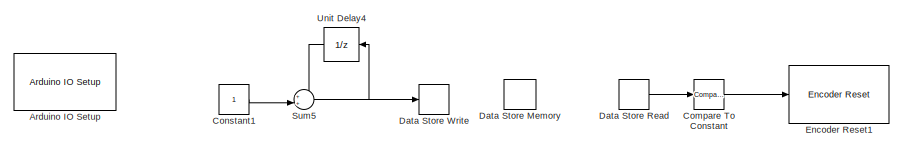
[diagram: root canvas - part 1/2, full width, top band]
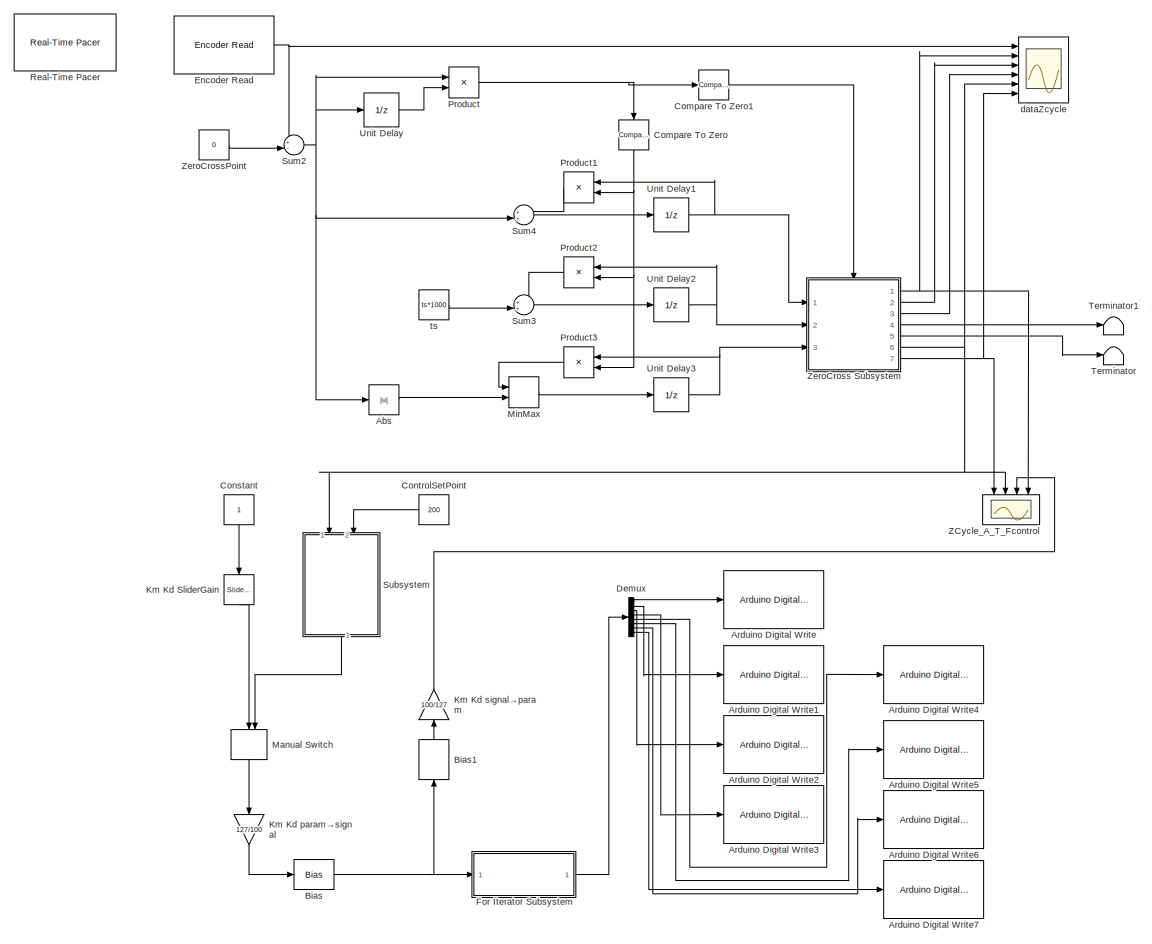
[diagram: root canvas - part 2/2, most of the canvas]
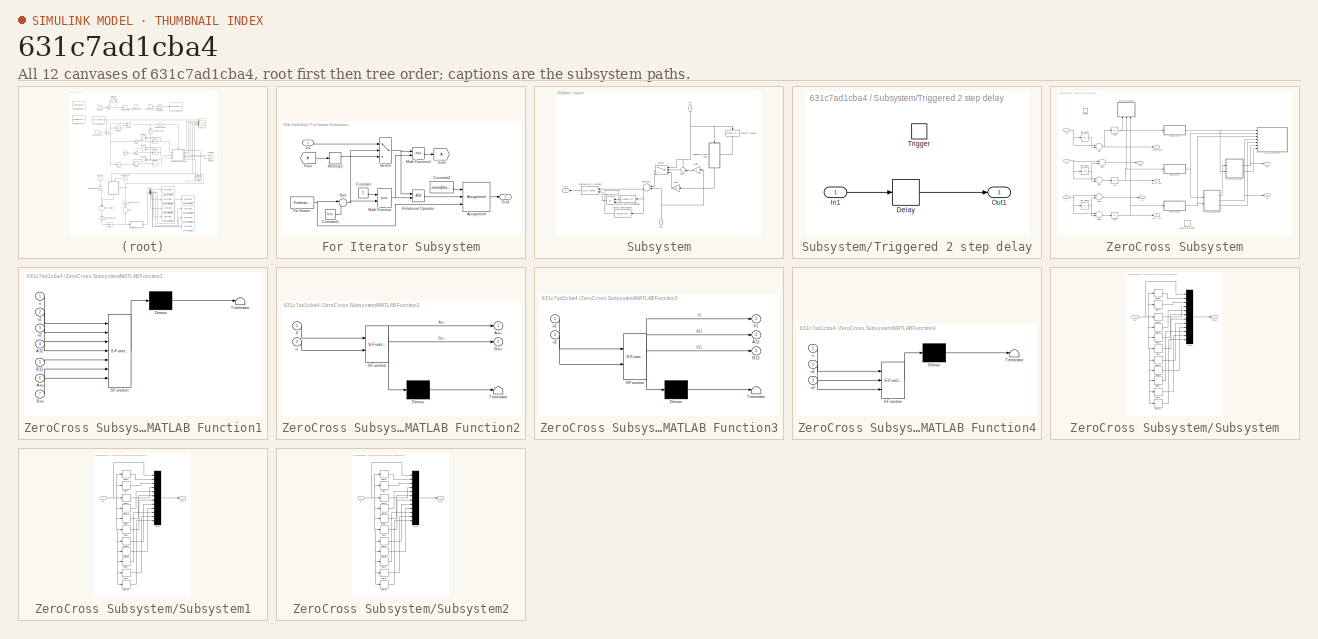
[diagram: thumbnail index - all 12 canvases of the model, root first then tree order]
MODEL slx_631c7ad1cba4
KIND model
BLOCK [Abs] Abs
  SaturateOnIntegerOverflow = off
BLOCK [Reference] Arduino Digital Write  REF=arduino_io_lib/Arduino Digital Write
  Ports = [1]
  SourceBlock = arduino_io_lib/Arduino Digital Write
  SourceType = Arduino IO digital Write
  T = ts
  arduinoPin = 6
  arduinoVar = Existing workspace arduino variable #1
BLOCK [Reference] Arduino Digital Write1  REF=arduino_io_lib/Arduino Digital Write
  Ports = [1]
  SourceBlock = arduino_io_lib/Arduino Digital Write
  SourceType = Arduino IO digital Write
  T = ts
  arduinoPin = 7
  arduinoVar = Existing workspace arduino variable #1
BLOCK [Reference] Arduino Digital Write2  REF=arduino_io_lib/Arduino Digital Write
  Ports = [1]
  SourceBlock = arduino_io_lib/Arduino Digital Write
  SourceType = Arduino IO digital Write
  T = ts
  arduinoPin = 8
  arduinoVar = Existing workspace arduino variable #1
BLOCK [Reference] Arduino Digital Write3  REF=arduino_io_lib/Arduino Digital Write
  Ports = [1]
  SourceBlock = arduino_io_lib/Arduino Digital Write
  SourceType = Arduino IO digital Write
  T = ts
  arduinoPin = 9
  arduinoVar = Existing workspace arduino variable #1
BLOCK [Reference] Arduino Digital Write4  REF=arduino_io_lib/Arduino Digital Write
  Ports = [1]
  SourceBlock = arduino_io_lib/Arduino Digital Write
  SourceType = Arduino IO digital Write
  T = ts
  arduinoPin = 10
  arduinoVar = Existing workspace arduino variable #1
BLOCK [Reference] Arduino Digital Write5  REF=arduino_io_lib/Arduino Digital Write
  Ports = [1]
  SourceBlock = arduino_io_lib/Arduino Digital Write
  SourceType = Arduino IO digital Write
  T = ts
  arduinoPin = 11
  arduinoVar = Existing workspace arduino variable #1
BLOCK [Reference] Arduino Digital Write6  REF=arduino_io_lib/Arduino Digital Write
  Ports = [1]
  SourceBlock = arduino_io_lib/Arduino Digital Write
  SourceType = Arduino IO digital Write
  T = ts
  arduinoPin = 12
  arduinoVar = Existing workspace arduino variable #1
BLOCK [Reference] Arduino Digital Write7  REF=arduino_io_lib/Arduino Digital Write
  Ports = [1]
  SourceBlock = arduino_io_lib/Arduino Digital Write
  SourceType = Arduino IO digital Write
  T = ts
  arduinoPin = 13
  arduinoVar = Existing workspace arduino variable #1
BLOCK [Reference] Arduino IO Setup  REF=arduino_io_lib/Arduino IO Setup
  Ports = []
  Priority = 3
  SourceBlock = arduino_io_lib/Arduino IO Setup
  SourceType = Arduino IO Setup
  arduinoVar = Existing workspace arduino variable #1
  comPort = DEMO
  workspaceVarName = a
BLOCK [Bias] Bias
  Bias = 128
  SaturateOnIntegerOverflow = off
BLOCK [Bias] Bias1
  Bias = -128
  SaturateOnIntegerOverflow = off
BLOCK [Reference] Compare To Constant  REF=simulink/Logic and Bit
Operations/Compare
To Constant
  OutDataTypeStr = boolean
  Ports = [1, 1]
  SourceBlock = simulink/Logic and Bit\nOperations/Compare\nTo Constant
  SourceType = Compare To Constant
  ZeroCross = on
  const = 1
  relop = ==
BLOCK [Reference] Compare To Zero  REF=simulink/Logic and Bit
Operations/Compare
To Zero
  OutDataTypeStr = boolean
  Ports = [1, 1]
  SourceBlock = simulink/Logic and Bit\nOperations/Compare\nTo Zero
  SourceType = Compare To Zero
  ZeroCross = on
  relop = >
BLOCK [Reference] Compare To Zero1  REF=simulink/Logic and Bit
Operations/Compare
To Zero
  OutDataTypeStr = boolean
  Ports = [1, 1]
  SourceBlock = simulink/Logic and Bit\nOperations/Compare\nTo Zero
  SourceType = Compare To Zero
  ZeroCross = on
  relop = <=
BLOCK [Constant] Constant
BLOCK [Constant] Constant1
BLOCK [Constant] ControlSetPoint
  Value = 200
BLOCK [DataStoreMemory] Data Store Memory
  DataStoreName = Count
  ReadBeforeWriteMsg = warning
  WriteAfterReadMsg = warning
  WriteAfterWriteMsg = warning
BLOCK [DataStoreRead] Data Store Read
  DataStoreName = Count
  Ports = [0, 1]
BLOCK [DataStoreWrite] Data Store Write
  DataStoreName = Count
  Ports = [1]
BLOCK [Demux] Demux
  DisplayOption = bar
  Outputs = 8
  Ports = [1, 8]
BLOCK [Reference] Encoder Read  REF=arduino_io_lib/Encoder Read
  DbDl = 0
  Ports = [0, 1]
  SourceBlock = arduino_io_lib/Encoder Read
  SourceType = Arduino IO Encoder Read
  T = ts
  arduinoVar = Existing workspace arduino variable #1
  encNum = 1
  pinA = 2
  pinB = 3
BLOCK [Reference] Encoder Reset1  REF=arduino_io_lib/Encoder Reset
  Ports = [1]
  SourceBlock = arduino_io_lib/Encoder Reset
  SourceType = Arduino IO Encoder Reset
  T = ts
  arduinoVar = Existing workspace arduino variable #1
  encNum = 1
BLOCK [SubSystem] For Iterator Subsystem
  FunctionWithSeparateData = off
  MaskHideContents = off
  MinAlgLoopOccurrences = off
  Opaque = off
  Ports = [1, 1]
  PropExecContextOutsideSubsystem = off
  RTWSystemCode = Auto
  RequestExecContextInheritance = off
  TreatAsAtomicUnit = on
BLOCK [Assignment] For Iterator Subsystem/Assignment
  IndexOptions = Index vector (port)
  Indices = 1
  OutputSizes = [1 1]
  Ports = [3, 1]
BLOCK [Constant] For Iterator Subsystem/Constant
  Value = 2
BLOCK [Constant] For Iterator Subsystem/Constant1
  Value = bits
BLOCK [Constant] For Iterator Subsystem/Constant2
  Value = zeros(bits,1)
  VectorParams1D = off
BLOCK [ForIterator] For Iterator Subsystem/For Iterator
  IterationLimit = bits
  Ports = [0, 1]
BLOCK [From] For Iterator Subsystem/From
  CloseFcn = tagdialog Close
BLOCK [Goto] For Iterator Subsystem/Goto
BLOCK [Inport] For Iterator Subsystem/In1
  IconDisplay = Port number
BLOCK [Math] For Iterator Subsystem/Math Function
  Operator = pow
  Ports = [2, 1]
BLOCK [Math] For Iterator Subsystem/Math Function1
  Operator = mod
  Ports = [2, 1]
BLOCK [Memory] For Iterator Subsystem/Memory1
  InheritSampleTime = on
BLOCK [Outport] For Iterator Subsystem/Out1
  IconDisplay = Port number
BLOCK [RelationalOperator] For Iterator Subsystem/Relational Operator
  InputSameDT = off
  OutDataTypeStr = float('double')
  Ports = [2, 1]
BLOCK [Sum] For Iterator Subsystem/Sum
  IconShape = round
  InputSameDT = off
  Inputs = |-+
  OutDataTypeStr = Inherit: Inherit via internal rule
  Ports = [2, 1]
  SaturateOnIntegerOverflow = off
BLOCK [Switch] For Iterator Subsystem/Switch
  InputSameDT = off
  SaturateOnIntegerOverflow = off
  Threshold = bits-1.5
BLOCK [Reference] Km Kd SliderGain  REF=simulink/Math
Operations/Slider
Gain
  Ports = [1, 1]
  SourceBlock = simulink/Math\nOperations/Slider\nGain
  SourceType = Slider Gain
  gain = 0
  high = 100
  low = -100
BLOCK [Gain] Km Kd param→signal
  Gain = 127/100
  OutDataTypeStr = Inherit: Inherit via internal rule
  ParamDataTypeStr = Inherit: Inherit via internal rule
  SaturateOnIntegerOverflow = off
BLOCK [Gain] Km Kd signal→param
  Gain = 100/127
  OutDataTypeStr = Inherit: Inherit via internal rule
  ParamDataTypeStr = Inherit: Inherit via internal rule
  SaturateOnIntegerOverflow = off
BLOCK [ManualSwitch] Manual Switch
BLOCK [MinMax] MinMax
  Function = max
  InputSameDT = off
  Inputs = 2
  LockScale = on
  OutDataTypeStr = double
  Ports = [2, 1]
  SaturateOnIntegerOverflow = off
BLOCK [Product] Product
  InputSameDT = off
  OutDataTypeStr = Inherit: Inherit via internal rule
  Ports = [2, 1]
  RndMeth = Floor
  SaturateOnIntegerOverflow = off
BLOCK [Product] Product1
  InputSameDT = off
  OutDataTypeStr = Inherit: Inherit via internal rule
  Ports = [2, 1]
  RndMeth = Floor
  SaturateOnIntegerOverflow = off
BLOCK [Product] Product2
  InputSameDT = off
  OutDataTypeStr = Inherit: Inherit via internal rule
  Ports = [2, 1]
  RndMeth = Floor
  SaturateOnIntegerOverflow = off
BLOCK [Product] Product3
  InputSameDT = off
  OutDataTypeStr = Inherit: Inherit via internal rule
  Ports = [2, 1]
  RndMeth = Floor
  SaturateOnIntegerOverflow = off
BLOCK [Reference] Real-Time Pacer  REF=arduino_io_lib/Real-Time Pacer
  Ports = []
  SourceBlock = arduino_io_lib/Real-Time Pacer
  SourceType = RealTime_Pacer
  simTimePerRealTime = 1
BLOCK [SubSystem] Subsystem
  FunctionWithSeparateData = off
  MaskHideContents = off
  MinAlgLoopOccurrences = off
  Opaque = off
  Ports = [2, 1]
  PropExecContextOutsideSubsystem = off
  RTWSystemCode = Auto
  RequestExecContextInheritance = off
BLOCK [Reference] Subsystem/Detect Change  REF=simulink/Logic and Bit
Operations/Detect
Change
  InputProcessing = Inherited
  OutDataTypeStr = boolean
  Ports = [1, 1]
  SourceBlock = simulink/Logic and Bit\nOperations/Detect\nChange
  SourceType = Detect Change
  vinit = 0
BLOCK [Reference] Subsystem/Detect Fall Negative  REF=simulink/Logic and Bit
Operations/Detect Fall
Negative
  InputProcessing = Inherited
  OutDataTypeStr = boolean
  Ports = [1, 1]
  SourceBlock = simulink/Logic and Bit\nOperations/Detect Fall\nNegative
  SourceType = Detect Fall Negative
  vinit = 0
BLOCK [Reference] Subsystem/Detect Rise Nonnegative  REF=simulink/Logic and Bit
Operations/Detect Rise
Nonnegative
  InputProcessing = Inherited
  OutDataTypeStr = boolean
  Ports = [1, 1]
  SourceBlock = simulink/Logic and Bit\nOperations/Detect Rise\nNonnegative
  SourceType = Detect Rise Nonnegative
  vinit = 0
BLOCK [Reference] Subsystem/Discrete PID Controller  REF=simulink/Continuous/PID Controller
  AntiWindupMode = none
  Controller = PID
  D = 0
  DOutDataTypeStr = Inherit: Inherit via internal rule
  DOutMax = []
  DOutMin = []
  DParamDataTypeStr = Inherit: Inherit via internal rule
  DParamMax = []
  DParamMin = []
  ExternalReset = rising
  FilterContinuousStateAttributes = ''
  FilterMethod = Forward Euler
  FilterOutDataTypeStr = Inherit: Inherit via internal rule
  FilterOutMax = []
  FilterOutMin = []
  FilterRTWStateStorageClass = Auto
  FilterStateMustResolveToSignalObject = off
  Form = Parallel
  I = 0.05
  IOutDataTypeStr = Inherit: Inherit via internal rule
  IOutMax = []
  IOutMin = []
  IParamDataTypeStr = Inherit: Inherit via internal rule
  IParamMax = []
  IParamMin = []
  IgnoreLimit = off
  InitialConditionForFilter = 0
  InitialConditionForIntegrator = 0
  InitialConditionSource = internal
  IntegratorContinuousStateAttributes = ''
  IntegratorMethod = Forward Euler
  IntegratorOutDataTypeStr = Inherit: Inherit via internal rule
  IntegratorOutMax = []
  IntegratorOutMin = []
  IntegratorRTWStateStorageClass = Auto
  IntegratorStateMustResolveToSignalObject = off
  Kb = 1
  KbOutDataTypeStr = Inherit: Inherit via internal rule
  KbOutMax = []
  KbOutMin = []
  KbParamDataTypeStr = Inherit: Inherit via internal rule
  KbParamMax = []
  KbParamMin = []
  Kt = 1
  KtOutDataTypeStr = Inherit: Inherit via internal rule
  KtOutMax = []
  KtOutMin = []
  KtParamDataTypeStr = Inherit: Inherit via internal rule
  KtParamMax = []
  KtParamMin = []
  LimitOutput = on
  LinearizeAsGain = off
  LockScale = off
  LowerSaturationLimit = -50
  N = 100
  NOutDataTypeStr = Inherit: Inherit via internal rule
  NOutMax = []
  NOutMin = []
  NParamDataTypeStr = Inherit: Inherit via internal rule
  NParamMax = []
  NParamMin = []
  P = 0.2
  POutDataTypeStr = Inherit: Inherit via internal rule
  POutMax = []
  POutMin = []
  PParamDataTypeStr = Inherit: Inherit via internal rule
  PParamMax = []
  PParamMin = []
  Ports = [2, 1]
  RndMeth = Floor
  SampleTime = -1
  SaturateOnIntegerOverflow = off
  SaturationOutDataTypeStr = Inherit: Same as input
  SaturationOutMax = []
  SaturationOutMin = []
  SourceBlock = simulink/Continuous/PID Controller
  SourceType = PID 1dof
  SumAccumDataTypeStr = Inherit: Inherit via internal rule
  SumDAccumDataTypeStr = Inherit: Inherit via internal rule
  SumDOutDataTypeStr = Inherit: Inherit via internal rule
  SumDOutMax = []
  SumDOutMin = []
  SumI1AccumDataTypeStr = Inherit: Inherit via internal rule
  SumI1OutDataTypeStr = Inherit: Inherit via internal rule
  SumI1OutMax = []
  SumI1OutMin = []
  SumI2AccumDataTypeStr = Inherit: Inherit via internal rule
  SumI2OutDataTypeStr = Inherit: Inherit via internal rule
  SumI2OutMax = []
  SumI2OutMin = []
  SumI3AccumDataTypeStr = Inherit: Inherit via internal rule
  SumI3OutDataTypeStr = Inherit: Inherit via internal rule
  SumI3OutMax = []
  SumI3OutMin = []
  SumOutDataTypeStr = Inherit: Inherit via internal rule
  SumOutMax = []
  SumOutMin = []
  TimeDomain = Discrete-time
  TrackingMode = off
  UpperSaturationLimit = 50
  ZeroCross = on
BLOCK [Gain] Subsystem/Gain
  Gain = 0.8
  OutDataTypeStr = Inherit: Inherit via internal rule
  ParamDataTypeStr = Inherit: Inherit via internal rule
  SaturateOnIntegerOverflow = off
BLOCK [Gain] Subsystem/Gain1
  Gain = 2
  OutDataTypeStr = Inherit: Inherit via internal rule
  ParamDataTypeStr = Inherit: Inherit via internal rule
  SaturateOnIntegerOverflow = off
BLOCK [Inport] Subsystem/In1
  IconDisplay = Port number
BLOCK [Inport] Subsystem/In2
  IconDisplay = Port number
  Port = 2
BLOCK [Logic] Subsystem/Logical Operator
  AllPortsSameDT = off
  Operator = OR
  OutDataTypeStr = boolean
  Ports = [2, 1]
BLOCK [Outport] Subsystem/Out1
  IconDisplay = Port number
BLOCK [Sum] Subsystem/Subtract1
  InputSameDT = off
  Inputs = -+
  OutDataTypeStr = Inherit: Inherit via internal rule
  Ports = [2, 1]
  SaturateOnIntegerOverflow = off
BLOCK [Sum] Subsystem/Sum1
  IconShape = round
  InputSameDT = off
  Inputs = -+|
  OutDataTypeStr = Inherit: Inherit via internal rule
  Ports = [2, 1]
  SaturateOnIntegerOverflow = off
BLOCK [Switch] Subsystem/Switch
  InputSameDT = off
  SaturateOnIntegerOverflow = off
BLOCK [SubSystem] Subsystem/Triggered 2 step delay
  FunctionWithSeparateData = off
  MaskHideContents = off
  MinAlgLoopOccurrences = off
  Opaque = off
  Ports = [1, 1, 0, 1]
  PropExecContextOutsideSubsystem = off
  RTWSystemCode = Auto
  RequestExecContextInheritance = off
  TreatAsAtomicUnit = on
BLOCK [Delay] Subsystem/Triggered 2 step delay/Delay
  InputPortMap = u0
  Ports = [1, 1]
BLOCK [Inport] Subsystem/Triggered 2 step delay/In1
  IconDisplay = Port number
BLOCK [Outport] Subsystem/Triggered 2 step delay/Out1
  IconDisplay = Port number
BLOCK [TriggerPort] Subsystem/Triggered 2 step delay/Trigger
  Ports = []
  StatesWhenEnabling = held
BLOCK [Sum] Sum2
  IconShape = round
  InputSameDT = off
  Inputs = +-|
  OutDataTypeStr = Inherit: Inherit via internal rule
  Ports = [2, 1]
  SaturateOnIntegerOverflow = off
BLOCK [Sum] Sum3
  IconShape = round
  InputSameDT = off
  Inputs = ++|
  OutDataTypeStr = Inherit: Inherit via internal rule
  Ports = [2, 1]
  SaturateOnIntegerOverflow = off
BLOCK [Sum] Sum4
  IconShape = round
  InputSameDT = off
  Inputs = ++|
  OutDataTypeStr = Inherit: Inherit via internal rule
  Ports = [2, 1]
  SaturateOnIntegerOverflow = off
BLOCK [Sum] Sum5
  IconShape = round
  InputSameDT = off
  Inputs = ++|
  OutDataTypeStr = Inherit: Inherit via internal rule
  Ports = [2, 1]
  SaturateOnIntegerOverflow = off
BLOCK [Terminator] Terminator
BLOCK [Terminator] Terminator1
BLOCK [UnitDelay] Unit Delay
  InputProcessing = Elements as channels (sample based)
  SampleTime = -1
BLOCK [UnitDelay] Unit Delay1
  SampleTime = -1
BLOCK [UnitDelay] Unit Delay2
  SampleTime = -1
BLOCK [UnitDelay] Unit Delay3
  InputProcessing = Elements as channels (sample based)
  SampleTime = -1
BLOCK [UnitDelay] Unit Delay4
  InputProcessing = Elements as channels (sample based)
  SampleTime = -1
BLOCK [Scope] ZCycle_A_T_Fcontrol
  DataFormat = StructureWithTime
  Floating = off
  NumInputPorts = 4
  Ports = [4]
  SampleTime = 0
  SaveName = ZCycle_A_T_Fcontrol
  SaveToWorkspace = on
  ShowLegends = off
  TimeRange = 10
  YMax = 175~1400~50~250
  YMin = 0~0~-50~-250
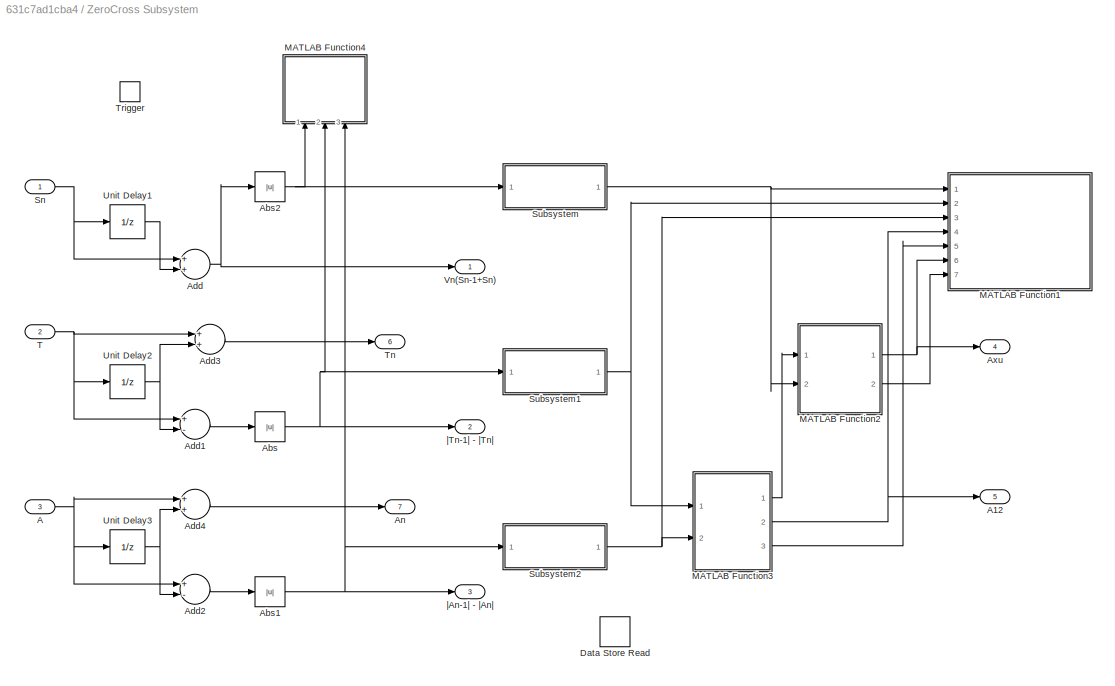
BLOCK [SubSystem] ZeroCross Subsystem
  FunctionWithSeparateData = off
  MaskHideContents = off
  MinAlgLoopOccurrences = off
  Opaque = off
  Ports = [3, 7, 0, 1]
  PropExecContextOutsideSubsystem = off
  RTWSystemCode = Auto
  RequestExecContextInheritance = off
  TreatAsAtomicUnit = on
BLOCK [Inport] ZeroCross Subsystem/A
  IconDisplay = Port number
  Port = 3
BLOCK [Outport] ZeroCross Subsystem/A12
  IconDisplay = Port number
  Port = 5
BLOCK [Abs] ZeroCross Subsystem/Abs
  SaturateOnIntegerOverflow = off
BLOCK [Abs] ZeroCross Subsystem/Abs1
  SaturateOnIntegerOverflow = off
BLOCK [Abs] ZeroCross Subsystem/Abs2
  SaturateOnIntegerOverflow = off
BLOCK [Sum] ZeroCross Subsystem/Add
  InputSameDT = off
  OutDataTypeStr = Inherit: Inherit via internal rule
  Ports = [2, 1]
  SaturateOnIntegerOverflow = off
BLOCK [Sum] ZeroCross Subsystem/Add1
  InputSameDT = off
  Inputs = +-
  OutDataTypeStr = Inherit: Inherit via internal rule
  Ports = [2, 1]
  SaturateOnIntegerOverflow = off
BLOCK [Sum] ZeroCross Subsystem/Add2
  InputSameDT = off
  Inputs = +-
  OutDataTypeStr = Inherit: Inherit via internal rule
  Ports = [2, 1]
  SaturateOnIntegerOverflow = off
BLOCK [Sum] ZeroCross Subsystem/Add3
  InputSameDT = off
  OutDataTypeStr = Inherit: Inherit via internal rule
  Ports = [2, 1]
  SaturateOnIntegerOverflow = off
BLOCK [Sum] ZeroCross Subsystem/Add4
  InputSameDT = off
  OutDataTypeStr = Inherit: Inherit via internal rule
  Ports = [2, 1]
  SaturateOnIntegerOverflow = off
BLOCK [Outport] ZeroCross Subsystem/An
  IconDisplay = Port number
  Port = 7
BLOCK [Outport] ZeroCross Subsystem/Axu
  IconDisplay = Port number
  Port = 4
BLOCK [DataStoreRead] ZeroCross Subsystem/Data Store Read
  Commented = on
  DataStoreName = Count
  Ports = [0, 1]
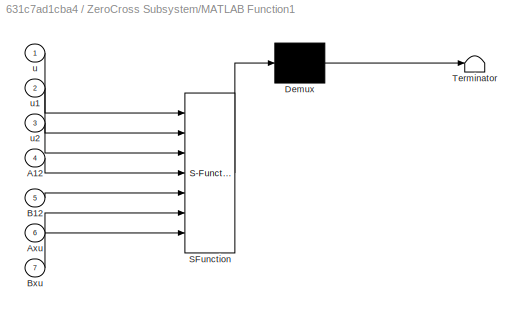
BLOCK [SubSystem] ZeroCross Subsystem/MATLAB Function1
  Commented = on
  ErrorFcn = Stateflow.Translate.translate
  FunctionWithSeparateData = off
  MaskHideContents = off
  MinAlgLoopOccurrences = off
  Opaque = off
  PermitHierarchicalResolution = ExplicitOnly
  Ports = [7]
  PropExecContextOutsideSubsystem = off
  RTWSystemCode = Auto
  RequestExecContextInheritance = off
  SFBlockType = MATLAB Function
  TreatAsAtomicUnit = on
BLOCK [Demux] ZeroCross Subsystem/MATLAB Function1/ Demux 
  Outputs = 1
  Ports = [1, 1]
BLOCK [S-Function] ZeroCross Subsystem/MATLAB Function1/ SFunction 
  EnableBusSupport = on
  FunctionName = sf_sfun
  PortCounts = [7 1]
  Ports = [7, 1]
  Tag = Stateflow S-Function Get_RE_RhythmCalc_Sig2Mbed_Tcontrol_paper_ver 4
BLOCK [Terminator] ZeroCross Subsystem/MATLAB Function1/ Terminator 
BLOCK [Inport] ZeroCross Subsystem/MATLAB Function1/A12
  IconDisplay = Port number
  Port = 4
BLOCK [Inport] ZeroCross Subsystem/MATLAB Function1/Axu
  IconDisplay = Port number
  Port = 6
BLOCK [Inport] ZeroCross Subsystem/MATLAB Function1/B12
  IconDisplay = Port number
  Port = 5
BLOCK [Inport] ZeroCross Subsystem/MATLAB Function1/Bxu
  IconDisplay = Port number
  Port = 7
BLOCK [Inport] ZeroCross Subsystem/MATLAB Function1/u
  IconDisplay = Port number
BLOCK [Inport] ZeroCross Subsystem/MATLAB Function1/u1
  IconDisplay = Port number
  Port = 2
BLOCK [Inport] ZeroCross Subsystem/MATLAB Function1/u2
  IconDisplay = Port number
  Port = 3
BLOCK [SubSystem] ZeroCross Subsystem/MATLAB Function2
  Commented = on
  ErrorFcn = Stateflow.Translate.translate
  FunctionWithSeparateData = off
  MaskHideContents = off
  MinAlgLoopOccurrences = off
  Opaque = off
  PermitHierarchicalResolution = ExplicitOnly
  Ports = [2, 2]
  PropExecContextOutsideSubsystem = off
  RTWSystemCode = Auto
  RequestExecContextInheritance = off
  SFBlockType = MATLAB Function
  TreatAsAtomicUnit = on
BLOCK [Demux] ZeroCross Subsystem/MATLAB Function2/ Demux 
  Outputs = 1
  Ports = [1, 1]
BLOCK [S-Function] ZeroCross Subsystem/MATLAB Function2/ SFunction 
  EnableBusSupport = on
  FunctionName = sf_sfun
  PortCounts = [2 3]
  Ports = [2, 3]
  Tag = Stateflow S-Function Get_RE_RhythmCalc_Sig2Mbed_Tcontrol_paper_ver 2
BLOCK [Terminator] ZeroCross Subsystem/MATLAB Function2/ Terminator 
BLOCK [Outport] ZeroCross Subsystem/MATLAB Function2/Axu
  IconDisplay = Port number
BLOCK [Outport] ZeroCross Subsystem/MATLAB Function2/Bxu
  IconDisplay = Port number
  Port = 2
BLOCK [Inport] ZeroCross Subsystem/MATLAB Function2/X
  IconDisplay = Port number
BLOCK [Inport] ZeroCross Subsystem/MATLAB Function2/u
  IconDisplay = Port number
  Port = 2
BLOCK [SubSystem] ZeroCross Subsystem/MATLAB Function3
  Commented = on
  ErrorFcn = Stateflow.Translate.translate
  FunctionWithSeparateData = off
  MaskHideContents = off
  MinAlgLoopOccurrences = off
  Opaque = off
  PermitHierarchicalResolution = ExplicitOnly
  Ports = [2, 3]
  PropExecContextOutsideSubsystem = off
  RTWSystemCode = Auto
  RequestExecContextInheritance = off
  SFBlockType = MATLAB Function
  TreatAsAtomicUnit = on
BLOCK [Demux] ZeroCross Subsystem/MATLAB Function3/ Demux 
  Outputs = 1
  Ports = [1, 1]
BLOCK [S-Function] ZeroCross Subsystem/MATLAB Function3/ SFunction 
  EnableBusSupport = on
  FunctionName = sf_sfun
  PortCounts = [2 4]
  Ports = [2, 4]
  Tag = Stateflow S-Function Get_RE_RhythmCalc_Sig2Mbed_Tcontrol_paper_ver 5
BLOCK [Terminator] ZeroCross Subsystem/MATLAB Function3/ Terminator 
BLOCK [Outport] ZeroCross Subsystem/MATLAB Function3/A12
  IconDisplay = Port number
  Port = 2
BLOCK [Outport] ZeroCross Subsystem/MATLAB Function3/B12
  IconDisplay = Port number
  Port = 3
BLOCK [Outport] ZeroCross Subsystem/MATLAB Function3/X1
  IconDisplay = Port number
BLOCK [Inport] ZeroCross Subsystem/MATLAB Function3/u1
  IconDisplay = Port number
BLOCK [Inport] ZeroCross Subsystem/MATLAB Function3/u2
  IconDisplay = Port number
  Port = 2
BLOCK [SubSystem] ZeroCross Subsystem/MATLAB Function4
  Commented = on
  ErrorFcn = Stateflow.Translate.translate
  FunctionWithSeparateData = off
  MaskHideContents = off
  MinAlgLoopOccurrences = off
  Opaque = off
  PermitHierarchicalResolution = ExplicitOnly
  Ports = [3]
  PropExecContextOutsideSubsystem = off
  RTWSystemCode = Auto
  RequestExecContextInheritance = off
  SFBlockType = MATLAB Function
  TreatAsAtomicUnit = on
BLOCK [Demux] ZeroCross Subsystem/MATLAB Function4/ Demux 
  Outputs = 1
  Ports = [1, 1]
BLOCK [S-Function] ZeroCross Subsystem/MATLAB Function4/ SFunction 
  EnableBusSupport = on
  FunctionName = sf_sfun
  PortCounts = [3 1]
  Ports = [3, 1]
  Tag = Stateflow S-Function Get_RE_RhythmCalc_Sig2Mbed_Tcontrol_paper_ver 3
BLOCK [Terminator] ZeroCross Subsystem/MATLAB Function4/ Terminator 
BLOCK [Inport] ZeroCross Subsystem/MATLAB Function4/u
  IconDisplay = Port number
BLOCK [Inport] ZeroCross Subsystem/MATLAB Function4/u1
  IconDisplay = Port number
  Port = 2
BLOCK [Inport] ZeroCross Subsystem/MATLAB Function4/u2
  IconDisplay = Port number
  Port = 3
BLOCK [Inport] ZeroCross Subsystem/Sn
  IconDisplay = Port number
BLOCK [SubSystem] ZeroCross Subsystem/Subsystem
  Commented = on
  FunctionWithSeparateData = off
  MaskHideContents = off
  MinAlgLoopOccurrences = off
  Opaque = off
  Ports = [1, 1]
  PropExecContextOutsideSubsystem = off
  RTWSystemCode = Auto
  RequestExecContextInheritance = off
BLOCK [Delay] ZeroCross Subsystem/Subsystem/Delay
  DelayLength = 6
  InputPortMap = u0
  Ports = [1, 1]
BLOCK [Delay] ZeroCross Subsystem/Subsystem/Delay1
  DelayLength = 5
  InputPortMap = u0
  Ports = [1, 1]
BLOCK [Delay] ZeroCross Subsystem/Subsystem/Delay10
  DelayLength = 11
  InputPortMap = u0
  Ports = [1, 1]
BLOCK [Delay] ZeroCross Subsystem/Subsystem/Delay2
  DelayLength = 4
  InputPortMap = u0
  Ports = [1, 1]
BLOCK [Delay] ZeroCross Subsystem/Subsystem/Delay3
  DelayLength = 3
  InputPortMap = u0
  Ports = [1, 1]
BLOCK [Delay] ZeroCross Subsystem/Subsystem/Delay4
  InputPortMap = u0
  Ports = [1, 1]
BLOCK [Delay] ZeroCross Subsystem/Subsystem/Delay5
  DelayLength = 1
  InputPortMap = u0
  Ports = [1, 1]
BLOCK [Delay] ZeroCross Subsystem/Subsystem/Delay6
  DelayLength = 10
  InputPortMap = u0
  Ports = [1, 1]
BLOCK [Delay] ZeroCross Subsystem/Subsystem/Delay7
  DelayLength = 9
  InputPortMap = u0
  Ports = [1, 1]
BLOCK [Delay] ZeroCross Subsystem/Subsystem/Delay8
  DelayLength = 8
  InputPortMap = u0
  Ports = [1, 1]
BLOCK [Delay] ZeroCross Subsystem/Subsystem/Delay9
  DelayLength = 7
  InputPortMap = u0
  Ports = [1, 1]
BLOCK [Inport] ZeroCross Subsystem/Subsystem/In1
  IconDisplay = Port number
BLOCK [Mux] ZeroCross Subsystem/Subsystem/Mux
  DisplayOption = bar
  Inputs = 12
  Ports = [12, 1]
BLOCK [Outport] ZeroCross Subsystem/Subsystem/Out1
  IconDisplay = Port number
BLOCK [SubSystem] ZeroCross Subsystem/Subsystem1
  Commented = on
  FunctionWithSeparateData = off
  MaskHideContents = off
  MinAlgLoopOccurrences = off
  Opaque = off
  Ports = [1, 1]
  PropExecContextOutsideSubsystem = off
  RTWSystemCode = Auto
  RequestExecContextInheritance = off
BLOCK [Delay] ZeroCross Subsystem/Subsystem1/Delay
  DelayLength = 6
  InputPortMap = u0
  Ports = [1, 1]
BLOCK [Delay] ZeroCross Subsystem/Subsystem1/Delay1
  DelayLength = 5
  InputPortMap = u0
  Ports = [1, 1]
BLOCK [Delay] ZeroCross Subsystem/Subsystem1/Delay10
  DelayLength = 11
  InputPortMap = u0
  Ports = [1, 1]
BLOCK [Delay] ZeroCross Subsystem/Subsystem1/Delay2
  DelayLength = 4
  InputPortMap = u0
  Ports = [1, 1]
BLOCK [Delay] ZeroCross Subsystem/Subsystem1/Delay3
  DelayLength = 3
  InputPortMap = u0
  Ports = [1, 1]
BLOCK [Delay] ZeroCross Subsystem/Subsystem1/Delay4
  InputPortMap = u0
  Ports = [1, 1]
BLOCK [Delay] ZeroCross Subsystem/Subsystem1/Delay5
  DelayLength = 1
  InputPortMap = u0
  Ports = [1, 1]
BLOCK [Delay] ZeroCross Subsystem/Subsystem1/Delay6
  DelayLength = 10
  InputPortMap = u0
  Ports = [1, 1]
BLOCK [Delay] ZeroCross Subsystem/Subsystem1/Delay7
  DelayLength = 9
  InputPortMap = u0
  Ports = [1, 1]
BLOCK [Delay] ZeroCross Subsystem/Subsystem1/Delay8
  DelayLength = 8
  InputPortMap = u0
  Ports = [1, 1]
BLOCK [Delay] ZeroCross Subsystem/Subsystem1/Delay9
  DelayLength = 7
  InputPortMap = u0
  Ports = [1, 1]
BLOCK [Inport] ZeroCross Subsystem/Subsystem1/In1
  IconDisplay = Port number
BLOCK [Mux] ZeroCross Subsystem/Subsystem1/Mux
  DisplayOption = bar
  Inputs = 12
  Ports = [12, 1]
BLOCK [Outport] ZeroCross Subsystem/Subsystem1/Out1
  IconDisplay = Port number
BLOCK [SubSystem] ZeroCross Subsystem/Subsystem2
  Commented = on
  FunctionWithSeparateData = off
  MaskHideContents = off
  MinAlgLoopOccurrences = off
  Opaque = off
  Ports = [1, 1]
  PropExecContextOutsideSubsystem = off
  RTWSystemCode = Auto
  RequestExecContextInheritance = off
BLOCK [Delay] ZeroCross Subsystem/Subsystem2/Delay
  DelayLength = 6
  InputPortMap = u0
  Ports = [1, 1]
BLOCK [Delay] ZeroCross Subsystem/Subsystem2/Delay1
  DelayLength = 5
  InputPortMap = u0
  Ports = [1, 1]
BLOCK [Delay] ZeroCross Subsystem/Subsystem2/Delay10
  DelayLength = 11
  InputPortMap = u0
  Ports = [1, 1]
BLOCK [Delay] ZeroCross Subsystem/Subsystem2/Delay2
  DelayLength = 4
  InputPortMap = u0
  Ports = [1, 1]
BLOCK [Delay] ZeroCross Subsystem/Subsystem2/Delay3
  DelayLength = 3
  InputPortMap = u0
  Ports = [1, 1]
BLOCK [Delay] ZeroCross Subsystem/Subsystem2/Delay4
  InputPortMap = u0
  Ports = [1, 1]
BLOCK [Delay] ZeroCross Subsystem/Subsystem2/Delay5
  DelayLength = 1
  InputPortMap = u0
  Ports = [1, 1]
BLOCK [Delay] ZeroCross Subsystem/Subsystem2/Delay6
  DelayLength = 10
  InputPortMap = u0
  Ports = [1, 1]
BLOCK [Delay] ZeroCross Subsystem/Subsystem2/Delay7
  DelayLength = 9
  InputPortMap = u0
  Ports = [1, 1]
BLOCK [Delay] ZeroCross Subsystem/Subsystem2/Delay8
  DelayLength = 8
  InputPortMap = u0
  Ports = [1, 1]
BLOCK [Delay] ZeroCross Subsystem/Subsystem2/Delay9
  DelayLength = 7
  InputPortMap = u0
  Ports = [1, 1]
BLOCK [Inport] ZeroCross Subsystem/Subsystem2/In1
  IconDisplay = Port number
BLOCK [Mux] ZeroCross Subsystem/Subsystem2/Mux
  DisplayOption = bar
  Inputs = 12
  Ports = [12, 1]
BLOCK [Outport] ZeroCross Subsystem/Subsystem2/Out1
  IconDisplay = Port number
BLOCK [Inport] ZeroCross Subsystem/T
  IconDisplay = Port number
  Port = 2
BLOCK [Outport] ZeroCross Subsystem/Tn
  IconDisplay = Port number
  Port = 6
BLOCK [TriggerPort] ZeroCross Subsystem/Trigger
  Ports = []
  StatesWhenEnabling = held
BLOCK [UnitDelay] ZeroCross Subsystem/Unit Delay1
  SampleTime = -1
BLOCK [UnitDelay] ZeroCross Subsystem/Unit Delay2
  SampleTime = -1
BLOCK [UnitDelay] ZeroCross Subsystem/Unit Delay3
  SampleTime = -1
BLOCK [Outport] ZeroCross Subsystem/Vn(Sn-1+Sn)
  IconDisplay = Port number
BLOCK [Outport] ZeroCross Subsystem/|An-1| - |An|
  IconDisplay = Port number
  Port = 3
BLOCK [Outport] ZeroCross Subsystem/|Tn-1| - |Tn|
  IconDisplay = Port number
  Port = 2
BLOCK [Constant] ZeroCrossPoint
  Value = 0
BLOCK [Scope] dataZcycle
  DataFormat = StructureWithTime
  Floating = off
  NumInputPorts = 6
  Ports = [6]
  SampleTime = 0
  SaveName = dataZcycle
  SaveToWorkspace = on
  ShowLegends = off
  TimeRange = 10
  YMax = 300~2500~400~225~700~500
  YMin = -250~-750~0~0~0~0
  ZoomMode = xonly
BLOCK [Constant] ts
  Value = ts*1000
LINE Abs:1 -> MinMax:2
LINE Bias1:1 -> Km Kd signal→param:1
NET Bias:1 -> Bias1:1, For Iterator Subsystem:1
LINE Compare To Constant:1 -> Encoder Reset1:1
LINE Compare To Zero1:1 -> ZeroCross Subsystem:trigger
NET Compare To Zero:1 -> Product1:2, Product2:2, Product3:2
LINE Constant1:1 -> Sum5:2
LINE Constant:1 -> Km Kd SliderGain:1
LINE ControlSetPoint:1 -> Subsystem:2
LINE Data Store Read:1 -> Compare To Constant:1
LINE Demux:1 -> Arduino Digital Write:1
LINE Demux:2 -> Arduino Digital Write1:1
LINE Demux:3 -> Arduino Digital Write2:1
LINE Demux:4 -> Arduino Digital Write3:1
LINE Demux:5 -> Arduino Digital Write4:1
LINE Demux:6 -> Arduino Digital Write5:1
LINE Demux:7 -> Arduino Digital Write6:1
LINE Demux:8 -> Arduino Digital Write7:1
NET Encoder Read:1 -> Sum2:1, dataZcycle:1
LINE For Iterator Subsystem/Assignment:1 -> For Iterator Subsystem/Out1:1
LINE For Iterator Subsystem/Constant1:1 -> For Iterator Subsystem/Sum:2
LINE For Iterator Subsystem/Constant2:1 -> For Iterator Subsystem/Assignment:1
LINE For Iterator Subsystem/Constant:1 -> For Iterator Subsystem/Math Function:1
NET For Iterator Subsystem/For Iterator:1 -> For Iterator Subsystem/Assignment:3, For Iterator Subsystem/Sum:1
LINE For Iterator Subsystem/From:1 -> For Iterator Subsystem/Memory1:1
LINE For Iterator Subsystem/In1:1 -> For Iterator Subsystem/Switch:1
LINE For Iterator Subsystem/Math Function1:1 -> For Iterator Subsystem/Goto:1
NET For Iterator Subsystem/Math Function:1 -> For Iterator Subsystem/Math Function1:2, For Iterator Subsystem/Relational Operator:2
LINE For Iterator Subsystem/Memory1:1 -> For Iterator Subsystem/Switch:3
LINE For Iterator Subsystem/Relational Operator:1 -> For Iterator Subsystem/Assignment:2
NET For Iterator Subsystem/Sum:1 -> For Iterator Subsystem/Math Function:2, For Iterator Subsystem/Switch:2
NET For Iterator Subsystem/Switch:1 -> For Iterator Subsystem/Math Function1:1, For Iterator Subsystem/Relational Operator:1
LINE For Iterator Subsystem:1 -> Demux:1
LINE Km Kd SliderGain:1 -> Manual Switch:1
LINE Km Kd param→signal:1 -> Bias:1
LINE Km Kd signal→param:1 -> ZCycle_A_T_Fcontrol:3
LINE Manual Switch:1 -> Km Kd param→signal:1
LINE MinMax:1 -> Unit Delay3:1
LINE Product1:1 -> Sum4:1
LINE Product2:1 -> Sum3:1
LINE Product3:1 -> MinMax:1
NET Product:1 -> Compare To Zero1:1, Compare To Zero:1
LINE Subsystem/Detect Change:1 -> Subsystem/Triggered 2 step delay:trigger
LINE Subsystem/Detect Fall Negative:1 -> Subsystem/Logical Operator:2
LINE Subsystem/Detect Rise Nonnegative:1 -> Subsystem/Logical Operator:1
LINE Subsystem/Discrete PID Controller:1 -> Subsystem/Out1:1
LINE Subsystem/Gain1:1 -> Subsystem/Sum1:2
LINE Subsystem/Gain:1 -> Subsystem/Switch:3
NET Subsystem/In1:1 -> Subsystem/Detect Change:1, Subsystem/Sum1:1, Subsystem/Switch:1, Subsystem/Triggered 2 step delay:1
NET Subsystem/In2:1 -> Subsystem/Gain1:1, Subsystem/Subtract1:2
LINE Subsystem/Logical Operator:1 -> Subsystem/Discrete PID Controller:2
NET Subsystem/Subtract1:1 -> Subsystem/Detect Fall Negative:1, Subsystem/Detect Rise Nonnegative:1, Subsystem/Discrete PID Controller:1
LINE Subsystem/Sum1:1 -> Subsystem/Switch:2
LINE Subsystem/Switch:1 -> Subsystem/Subtract1:1
LINE Subsystem/Triggered 2 step delay/Delay:1 -> Subsystem/Triggered 2 step delay/Out1:1
LINE Subsystem/Triggered 2 step delay/In1:1 -> Subsystem/Triggered 2 step delay/Delay:1
LINE Subsystem/Triggered 2 step delay:1 -> Subsystem/Gain:1
LINE Subsystem:1 -> Manual Switch:2
NET Sum2:1 -> Abs:1, Product:1, Sum4:2, Unit Delay:1
LINE Sum3:1 -> Unit Delay2:1
LINE Sum4:1 -> Unit Delay1:1
NET Sum5:1 -> Data Store Write:1, Unit Delay4:1
NET Unit Delay1:1 -> Product1:1, ZeroCross Subsystem:1
NET Unit Delay2:1 -> Product2:1, ZeroCross Subsystem:2
NET Unit Delay3:1 -> Product3:1, ZeroCross Subsystem:3
LINE Unit Delay4:1 -> Sum5:1
LINE Unit Delay:1 -> Product:2
NET ZeroCross Subsystem/A:1 -> ZeroCross Subsystem/Add2:1, ZeroCross Subsystem/Add4:1, ZeroCross Subsystem/Unit Delay3:1
NET ZeroCross Subsystem/Abs1:1 -> ZeroCross Subsystem/MATLAB Function4:3, ZeroCross Subsystem/Subsystem2:1, ZeroCross Subsystem/|An-1| - |An|:1
NET ZeroCross Subsystem/Abs2:1 -> ZeroCross Subsystem/MATLAB Function4:1, ZeroCross Subsystem/Subsystem:1
NET ZeroCross Subsystem/Abs:1 -> ZeroCross Subsystem/MATLAB Function4:2, ZeroCross Subsystem/Subsystem1:1, ZeroCross Subsystem/|Tn-1| - |Tn|:1
LINE ZeroCross Subsystem/Add1:1 -> ZeroCross Subsystem/Abs:1
LINE ZeroCross Subsystem/Add2:1 -> ZeroCross Subsystem/Abs1:1
LINE ZeroCross Subsystem/Add3:1 -> ZeroCross Subsystem/Tn:1
LINE ZeroCross Subsystem/Add4:1 -> ZeroCross Subsystem/An:1
NET ZeroCross Subsystem/Add:1 -> ZeroCross Subsystem/Abs2:1, ZeroCross Subsystem/Vn(Sn-1+Sn):1
NET ZeroCross Subsystem/MATLAB Function2:1 -> ZeroCross Subsystem/Axu:1, ZeroCross Subsystem/MATLAB Function1:6
LINE ZeroCross Subsystem/MATLAB Function2:2 -> ZeroCross Subsystem/MATLAB Function1:7
LINE ZeroCross Subsystem/MATLAB Function3:1 -> ZeroCross Subsystem/MATLAB Function2:1
NET ZeroCross Subsystem/MATLAB Function3:2 -> ZeroCross Subsystem/A12:1, ZeroCross Subsystem/MATLAB Function1:4
LINE ZeroCross Subsystem/MATLAB Function3:3 -> ZeroCross Subsystem/MATLAB Function1:5
NET ZeroCross Subsystem/Sn:1 -> ZeroCross Subsystem/Add:1, ZeroCross Subsystem/Unit Delay1:1
LINE ZeroCross Subsystem/Subsystem/Delay10:1 -> ZeroCross Subsystem/Subsystem/Mux:12
LINE ZeroCross Subsystem/Subsystem/Delay1:1 -> ZeroCross Subsystem/Subsystem/Mux:6
LINE ZeroCross Subsystem/Subsystem/Delay2:1 -> ZeroCross Subsystem/Subsystem/Mux:5
LINE ZeroCross Subsystem/Subsystem/Delay3:1 -> ZeroCross Subsystem/Subsystem/Mux:4
LINE ZeroCross Subsystem/Subsystem/Delay4:1 -> ZeroCross Subsystem/Subsystem/Mux:3
LINE ZeroCross Subsystem/Subsystem/Delay5:1 -> ZeroCross Subsystem/Subsystem/Mux:2
LINE ZeroCross Subsystem/Subsystem/Delay6:1 -> ZeroCross Subsystem/Subsystem/Mux:11
LINE ZeroCross Subsystem/Subsystem/Delay7:1 -> ZeroCross Subsystem/Subsystem/Mux:10
LINE ZeroCross Subsystem/Subsystem/Delay8:1 -> ZeroCross Subsystem/Subsystem/Mux:9
LINE ZeroCross Subsystem/Subsystem/Delay9:1 -> ZeroCross Subsystem/Subsystem/Mux:8
LINE ZeroCross Subsystem/Subsystem/Delay:1 -> ZeroCross Subsystem/Subsystem/Mux:7
NET ZeroCross Subsystem/Subsystem/In1:1 -> ZeroCross Subsystem/Subsystem/Delay10:1, ZeroCross Subsystem/Subsystem/Delay1:1, ZeroCross Subsystem/Subsystem/Delay2:1, ZeroCross Subsystem/Subsystem/Delay3:1, ZeroCross Subsystem/Subsystem/Delay4:1, ZeroCross Subsystem/Subsystem/Delay5:1, ZeroCross Subsystem/Subsystem/Delay6:1, ZeroCross Subsystem/Subsystem/Delay7:1, ZeroCross Subsystem/Subsystem/Delay8:1, ZeroCross Subsystem/Subsystem/Delay9:1, ZeroCross Subsystem/Subsystem/Delay:1, ZeroCross Subsystem/Subsystem/Mux:1
LINE ZeroCross Subsystem/Subsystem/Mux:1 -> ZeroCross Subsystem/Subsystem/Out1:1
LINE ZeroCross Subsystem/Subsystem1/Delay10:1 -> ZeroCross Subsystem/Subsystem1/Mux:12
LINE ZeroCross Subsystem/Subsystem1/Delay1:1 -> ZeroCross Subsystem/Subsystem1/Mux:6
LINE ZeroCross Subsystem/Subsystem1/Delay2:1 -> ZeroCross Subsystem/Subsystem1/Mux:5
LINE ZeroCross Subsystem/Subsystem1/Delay3:1 -> ZeroCross Subsystem/Subsystem1/Mux:4
LINE ZeroCross Subsystem/Subsystem1/Delay4:1 -> ZeroCross Subsystem/Subsystem1/Mux:3
LINE ZeroCross Subsystem/Subsystem1/Delay5:1 -> ZeroCross Subsystem/Subsystem1/Mux:2
LINE ZeroCross Subsystem/Subsystem1/Delay6:1 -> ZeroCross Subsystem/Subsystem1/Mux:11
LINE ZeroCross Subsystem/Subsystem1/Delay7:1 -> ZeroCross Subsystem/Subsystem1/Mux:10
LINE ZeroCross Subsystem/Subsystem1/Delay8:1 -> ZeroCross Subsystem/Subsystem1/Mux:9
LINE ZeroCross Subsystem/Subsystem1/Delay9:1 -> ZeroCross Subsystem/Subsystem1/Mux:8
LINE ZeroCross Subsystem/Subsystem1/Delay:1 -> ZeroCross Subsystem/Subsystem1/Mux:7
NET ZeroCross Subsystem/Subsystem1/In1:1 -> ZeroCross Subsystem/Subsystem1/Delay10:1, ZeroCross Subsystem/Subsystem1/Delay1:1, ZeroCross Subsystem/Subsystem1/Delay2:1, ZeroCross Subsystem/Subsystem1/Delay3:1, ZeroCross Subsystem/Subsystem1/Delay4:1, ZeroCross Subsystem/Subsystem1/Delay5:1, ZeroCross Subsystem/Subsystem1/Delay6:1, ZeroCross Subsystem/Subsystem1/Delay7:1, ZeroCross Subsystem/Subsystem1/Delay8:1, ZeroCross Subsystem/Subsystem1/Delay9:1, ZeroCross Subsystem/Subsystem1/Delay:1, ZeroCross Subsystem/Subsystem1/Mux:1
LINE ZeroCross Subsystem/Subsystem1/Mux:1 -> ZeroCross Subsystem/Subsystem1/Out1:1
NET ZeroCross Subsystem/Subsystem1:1 -> ZeroCross Subsystem/MATLAB Function1:2, ZeroCross Subsystem/MATLAB Function3:1
LINE ZeroCross Subsystem/Subsystem2/Delay10:1 -> ZeroCross Subsystem/Subsystem2/Mux:12
LINE ZeroCross Subsystem/Subsystem2/Delay1:1 -> ZeroCross Subsystem/Subsystem2/Mux:6
LINE ZeroCross Subsystem/Subsystem2/Delay2:1 -> ZeroCross Subsystem/Subsystem2/Mux:5
LINE ZeroCross Subsystem/Subsystem2/Delay3:1 -> ZeroCross Subsystem/Subsystem2/Mux:4
LINE ZeroCross Subsystem/Subsystem2/Delay4:1 -> ZeroCross Subsystem/Subsystem2/Mux:3
LINE ZeroCross Subsystem/Subsystem2/Delay5:1 -> ZeroCross Subsystem/Subsystem2/Mux:2
LINE ZeroCross Subsystem/Subsystem2/Delay6:1 -> ZeroCross Subsystem/Subsystem2/Mux:11
LINE ZeroCross Subsystem/Subsystem2/Delay7:1 -> ZeroCross Subsystem/Subsystem2/Mux:10
LINE ZeroCross Subsystem/Subsystem2/Delay8:1 -> ZeroCross Subsystem/Subsystem2/Mux:9
LINE ZeroCross Subsystem/Subsystem2/Delay9:1 -> ZeroCross Subsystem/Subsystem2/Mux:8
LINE ZeroCross Subsystem/Subsystem2/Delay:1 -> ZeroCross Subsystem/Subsystem2/Mux:7
NET ZeroCross Subsystem/Subsystem2/In1:1 -> ZeroCross Subsystem/Subsystem2/Delay10:1, ZeroCross Subsystem/Subsystem2/Delay1:1, ZeroCross Subsystem/Subsystem2/Delay2:1, ZeroCross Subsystem/Subsystem2/Delay3:1, ZeroCross Subsystem/Subsystem2/Delay4:1, ZeroCross Subsystem/Subsystem2/Delay5:1, ZeroCross Subsystem/Subsystem2/Delay6:1, ZeroCross Subsystem/Subsystem2/Delay7:1, ZeroCross Subsystem/Subsystem2/Delay8:1, ZeroCross Subsystem/Subsystem2/Delay9:1, ZeroCross Subsystem/Subsystem2/Delay:1, ZeroCross Subsystem/Subsystem2/Mux:1
LINE ZeroCross Subsystem/Subsystem2/Mux:1 -> ZeroCross Subsystem/Subsystem2/Out1:1
NET ZeroCross Subsystem/Subsystem2:1 -> ZeroCross Subsystem/MATLAB Function1:3, ZeroCross Subsystem/MATLAB Function3:2
NET ZeroCross Subsystem/Subsystem:1 -> ZeroCross Subsystem/MATLAB Function1:1, ZeroCross Subsystem/MATLAB Function2:2
NET ZeroCross Subsystem/T:1 -> ZeroCross Subsystem/Add1:1, ZeroCross Subsystem/Add3:1, ZeroCross Subsystem/Unit Delay2:1
LINE ZeroCross Subsystem/Unit Delay1:1 -> ZeroCross Subsystem/Add:2
NET ZeroCross Subsystem/Unit Delay2:1 -> ZeroCross Subsystem/Add1:2, ZeroCross Subsystem/Add3:2
NET ZeroCross Subsystem/Unit Delay3:1 -> ZeroCross Subsystem/Add2:2, ZeroCross Subsystem/Add4:2
NET ZeroCross Subsystem:1 -> ZCycle_A_T_Fcontrol:4, dataZcycle:2
LINE ZeroCross Subsystem:2 -> dataZcycle:3
LINE ZeroCross Subsystem:3 -> dataZcycle:4
LINE ZeroCross Subsystem:4 -> Terminator1:1
LINE ZeroCross Subsystem:5 -> Terminator:1
NET ZeroCross Subsystem:6 -> Subsystem:1, ZCycle_A_T_Fcontrol:2, dataZcycle:5
NET ZeroCross Subsystem:7 -> ZCycle_A_T_Fcontrol:1, dataZcycle:6
LINE ZeroCrossPoint:1 -> Sum2:2
LINE ts:1 -> Sum3:2
note: NET lines group one-source signal fan-out (src -> all destinations, sorted); 1:1 wires keep LINE
